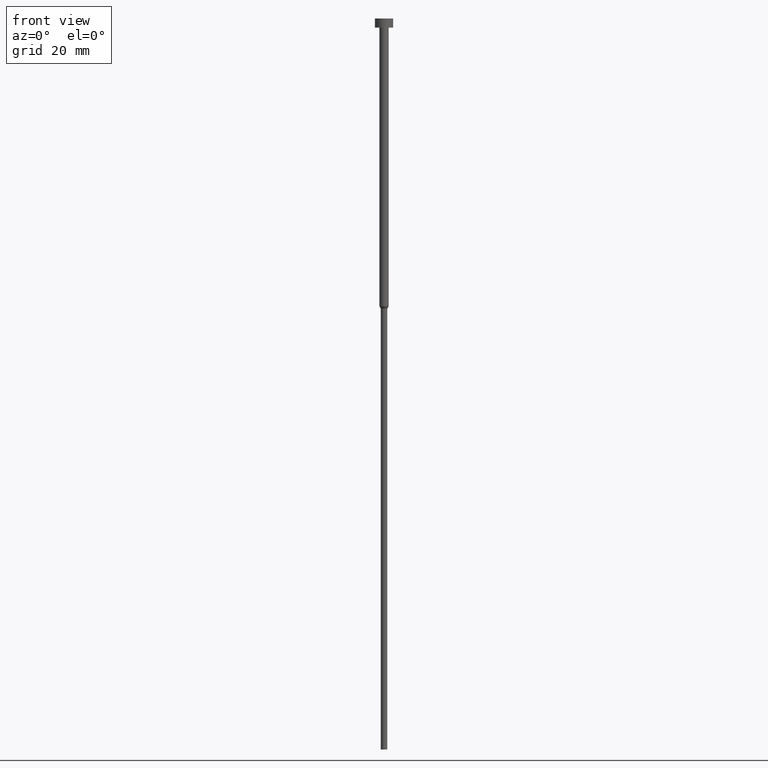
[diagram: clean part render]
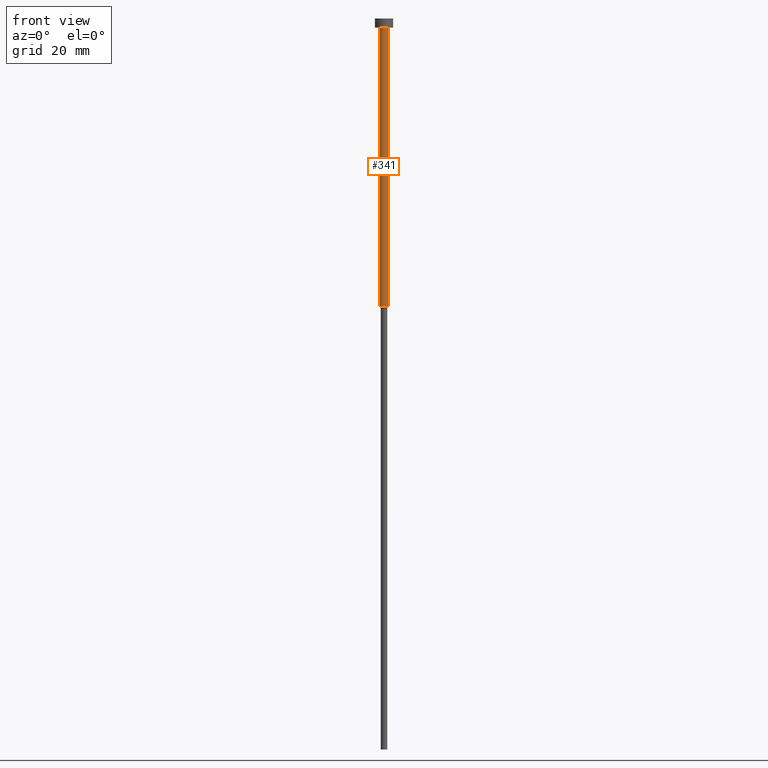
[diagram: same view with one face highlighted and labeled with its STEP entity id]
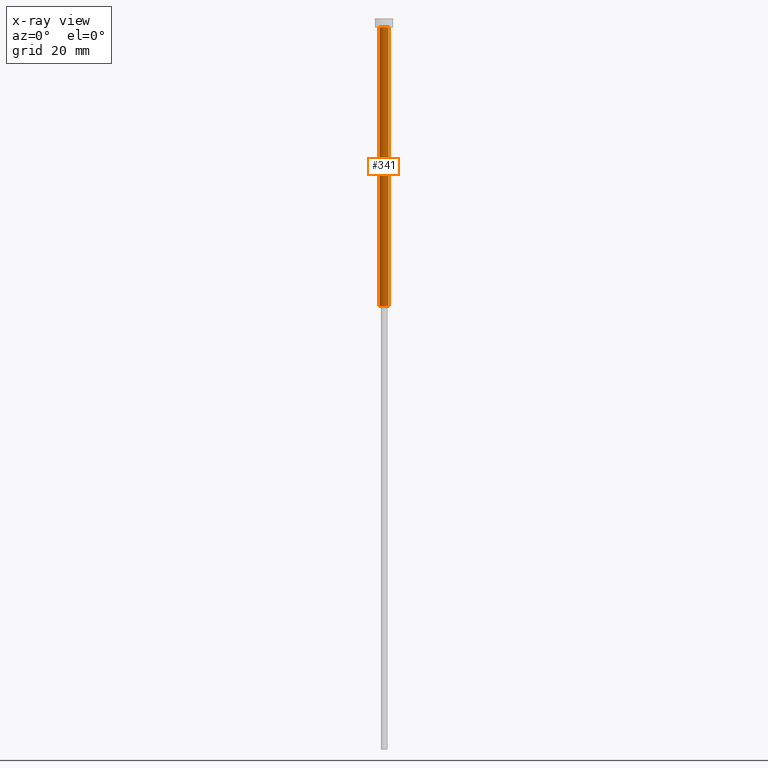
[diagram: x-ray of the same camera — body ghosted, the highlighted face saturated]
A machine part, front view. The second image highlights one B-rep face of the part: STEP entity #341.
The next image is the same camera in x-ray: the body ghosted, the highlighted face saturated — about 0% of this face is hidden behind the body in this view.
In plain terms, the highlighted cylindrical surface (edge-blend (fillet) strip) has radius 1 mm, axis along (-0, -0, 1).
Its self-contained STEP definition (entity closure, byte-faithful):
#9 = CARTESIAN_POINT ( 'NONE',  ( 1.000000000000003109, 0.000000000000000000, -63.00000000000000000 ) ) ;
#14 = VECTOR ( 'NONE', #342, 1000.000000000000000 ) ;
#17 = EDGE_CURVE ( 'NONE', #242, #177, #351, .T. ) ;
#34 = CYLINDRICAL_SURFACE ( 'NONE', #51, 1.000000000000003331 ) ;
#42 = EDGE_LOOP ( 'NONE', ( #129, #127, #184, #297 ) ) ;
#43 = EDGE_CURVE ( 'NONE', #346, #54, #191, .T. ) ;
#51 = AXIS2_PLACEMENT_3D ( 'NONE', #314, #64, #91 ) ;
#54 = VERTEX_POINT ( 'NONE', #248 ) ;
#64 = DIRECTION ( 'NONE',  ( -0.000000000000000000, -0.000000000000000000, 1.000000000000000000 ) ) ;
#79 = DIRECTION ( 'NONE',  ( -0.000000000000000000, -0.000000000000000000, 1.000000000000000000 ) ) ;
#82 = DIRECTION ( 'NONE',  ( -0.000000000000000000, -0.000000000000000000, 1.000000000000000000 ) ) ;
#83 = EDGE_CURVE ( 'NONE', #54, #177, #101, .T. ) ;
#85 = CARTESIAN_POINT ( 'NONE',  ( -1.000000000000003331, 1.224646799147357151E-16, 0.000000000000000000 ) ) ;
#91 = DIRECTION ( 'NONE',  ( 1.000000000000000000, 0.000000000000000000, 0.000000000000000000 ) ) ;
#101 = CIRCLE ( 'NONE', #263, 1.000000000000003553 ) ;
#111 = CARTESIAN_POINT ( 'NONE',  ( 1.000000000000003553, 0.000000000000000000, -2.000000000000000444 ) ) ;
#118 = DIRECTION ( 'NONE',  ( -0.000000000000000000, -0.000000000000000000, 1.000000000000000000 ) ) ;
#127 = ORIENTED_EDGE ( 'NONE', *, *, #247, .T. ) ;
#129 = ORIENTED_EDGE ( 'NONE', *, *, #43, .F. ) ;
#135 = DIRECTION ( 'NONE',  ( 1.000000000000000000, 0.000000000000000000, 0.000000000000000000 ) ) ;
#170 = CARTESIAN_POINT ( 'NONE',  ( -1.000000000000003109, 1.224646799147356905E-16, -63.00000000000000000 ) ) ;
#172 = CARTESIAN_POINT ( 'NONE',  ( 0.000000000000000000, 0.000000000000000000, -63.00000000000000000 ) ) ;
#177 = VERTEX_POINT ( 'NONE', #111 ) ;
#184 = ORIENTED_EDGE ( 'NONE', *, *, #17, .T. ) ;
#191 = LINE ( 'NONE', #85, #310 ) ;
#204 = FACE_OUTER_BOUND ( 'NONE', #42, .T. ) ;
#233 = AXIS2_PLACEMENT_3D ( 'NONE', #172, #118, #287 ) ;
#242 = VERTEX_POINT ( 'NONE', #9 ) ;
#247 = EDGE_CURVE ( 'NONE', #346, #242, #339, .T. ) ;
#248 = CARTESIAN_POINT ( 'NONE',  ( -1.000000000000003553, 1.224646799147357398E-16, -2.000000000000000444 ) ) ;
#263 = AXIS2_PLACEMENT_3D ( 'NONE', #301, #79, #135 ) ;
#287 = DIRECTION ( 'NONE',  ( 1.000000000000000000, 0.000000000000000000, 0.000000000000000000 ) ) ;
#297 = ORIENTED_EDGE ( 'NONE', *, *, #83, .F. ) ;
#301 = CARTESIAN_POINT ( 'NONE',  ( 0.000000000000000000, 0.000000000000000000, -2.000000000000000444 ) ) ;
#310 = VECTOR ( 'NONE', #82, 1000.000000000000000 ) ;
#314 = CARTESIAN_POINT ( 'NONE',  ( 0.000000000000000000, 0.000000000000000000, 0.000000000000000000 ) ) ;
#319 = CARTESIAN_POINT ( 'NONE',  ( 1.000000000000003331, 0.000000000000000000, 0.000000000000000000 ) ) ;
#339 = CIRCLE ( 'NONE', #233, 1.000000000000003109 ) ;
#341 = ADVANCED_FACE ( 'NONE', ( #204 ), #34, .T. ) ;
#342 = DIRECTION ( 'NONE',  ( -0.000000000000000000, -0.000000000000000000, 1.000000000000000000 ) ) ;
#346 = VERTEX_POINT ( 'NONE', #170 ) ;
#351 = LINE ( 'NONE', #319, #14 ) ;